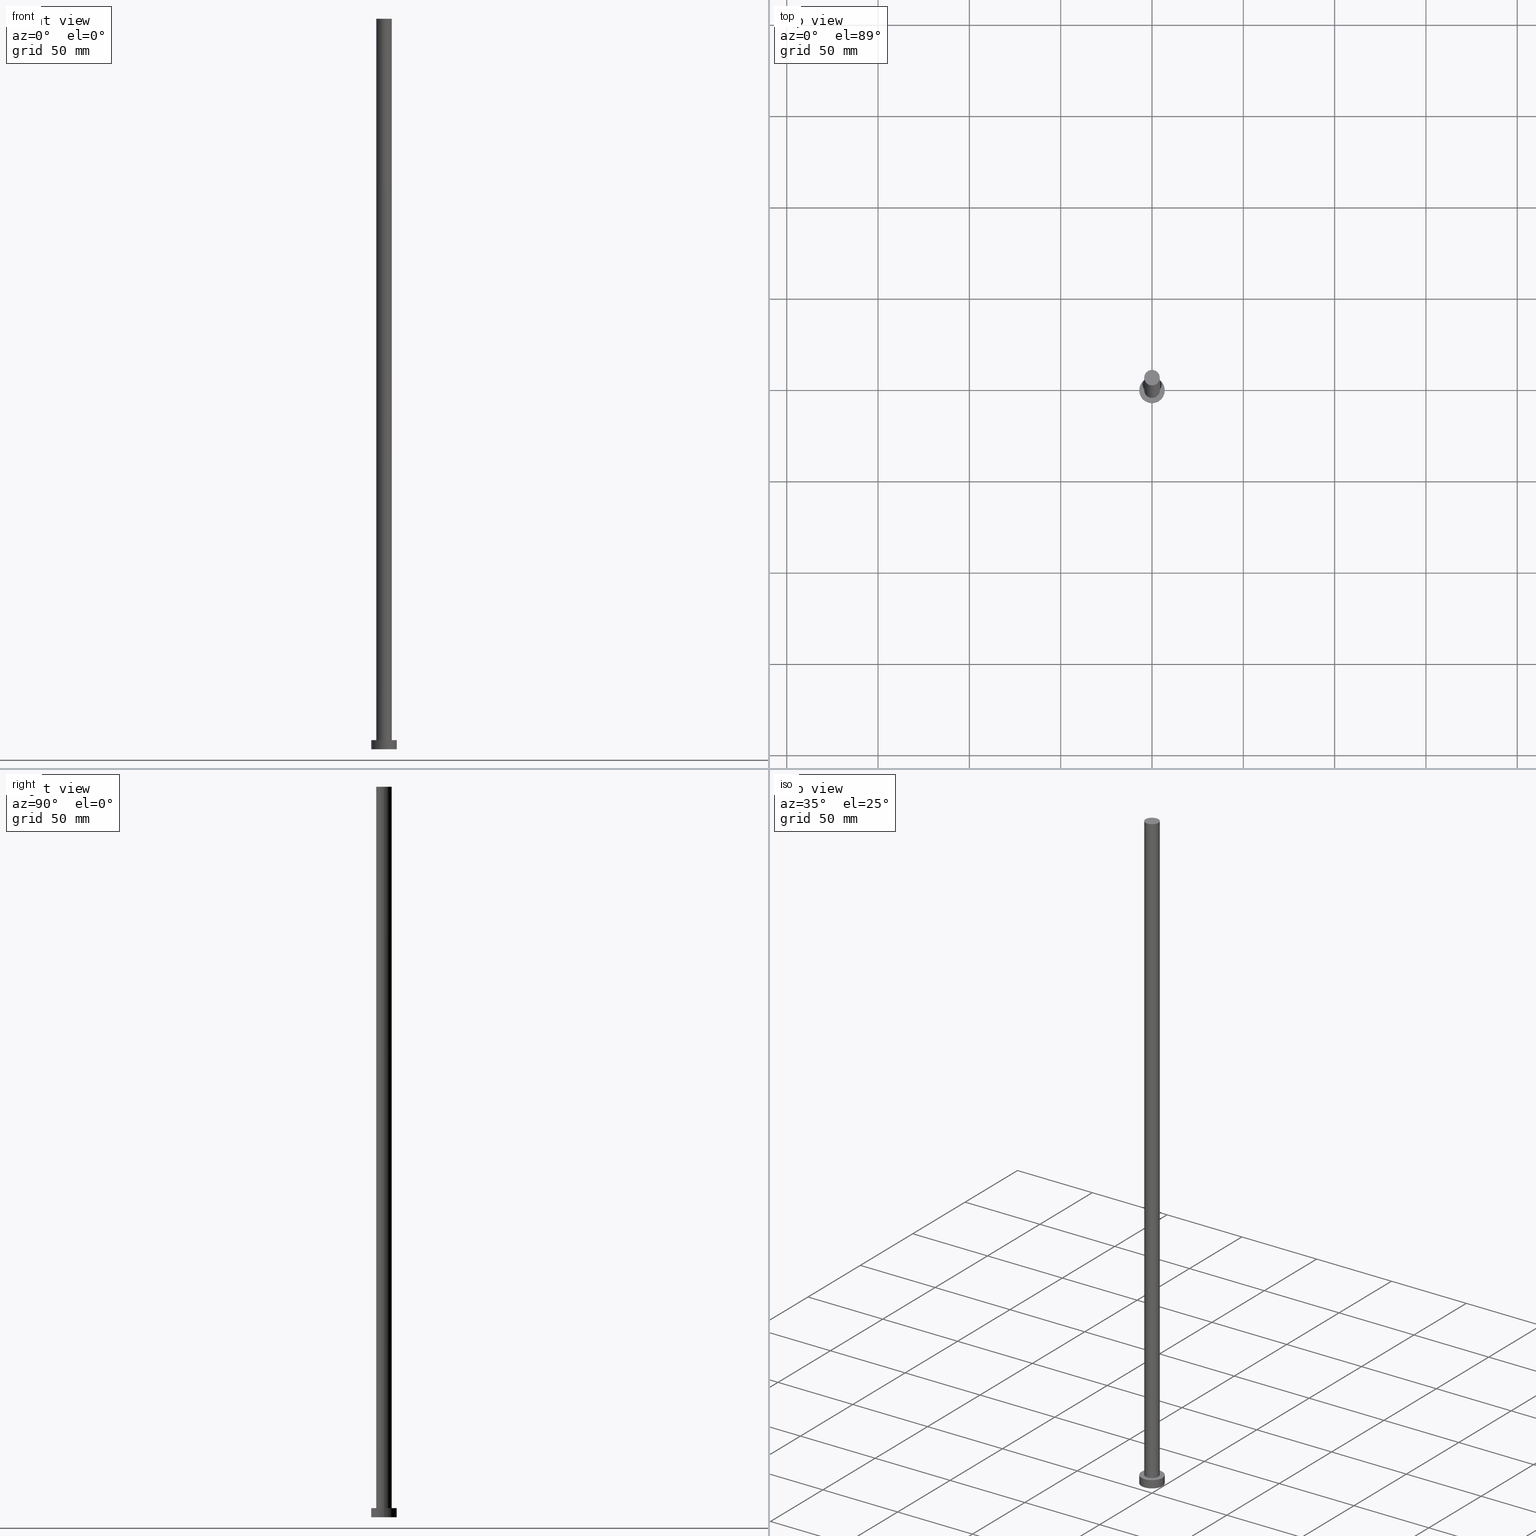
[diagram: canonical four-view strip — front | top / right | iso, engineering-drawing reading convention]
A machine part, canonical four-view strip (front | top / right | iso — engineering-drawing reading convention). The complete STEP part file that produces these views, byte-faithful:
ISO-10303-21;
HEADER;
FILE_DESCRIPTION (( 'STEP AP203' ),
    '1' );
FILE_NAME ('5774.STEP',
    '2023-02-13T13:52:42',
    ( '' ),
    ( '' ),
    'SwSTEP 2.0',
    'SolidWorks 2019',
    '' );
FILE_SCHEMA (( 'CONFIG_CONTROL_DESIGN' ));
ENDSEC;

DATA;
#1 = DIRECTION ( 'NONE',  ( 0.000000000000000000, 0.000000000000000000, 1.000000000000000000 ) ) ;
#2 = DIRECTION ( 'NONE',  ( -0.000000000000000000, -0.000000000000000000, -1.000000000000000000 ) ) ;
#3 = CARTESIAN_POINT ( 'NONE',  ( 0.000000000000000000, 0.000000000000000000, 5.000000000000000000 ) ) ;
#4 = DIRECTION ( 'NONE',  ( 0.000000000000000000, 0.000000000000000000, 1.000000000000000000 ) ) ;
#5 = CARTESIAN_POINT ( 'NONE',  ( 0.000000000000000000, 0.000000000000000000, 0.000000000000000000 ) ) ;
#6 = CARTESIAN_POINT ( 'NONE',  ( 4.250000000000000000, 5.204748896376249713E-16, 5.000000000000000000 ) ) ;
#7 = CIRCLE ( 'NONE', #88, 7.000000000000000000 ) ;
#8 = PERSON_AND_ORGANIZATION ( #19, #34 ) ;
#9 = ORIENTED_EDGE ( 'NONE', *, *, #170, .T. ) ;
#10 = AXIS2_PLACEMENT_3D ( 'NONE', #86, #124, #99 ) ;
#11 = EDGE_CURVE ( 'NONE', #206, #139, #152, .T. ) ;
#12 = PRODUCT_DEFINITION_SHAPE ( 'NONE', 'NONE',  #74 ) ;
#13 = APPROVAL ( #18, 'NEUR�EN�' ) ;
#14 = DIRECTION ( 'NONE',  ( 0.000000000000000000, 0.000000000000000000, 1.000000000000000000 ) ) ;
#15 = COORDINATED_UNIVERSAL_TIME_OFFSET ( 1, 0, .AHEAD. ) ;
#16 = CC_DESIGN_APPROVAL ( #229, ( #74 ) ) ;
#17 = DIRECTION ( 'NONE',  ( 0.000000000000000000, 0.000000000000000000, 1.000000000000000000 ) ) ;
#18 = APPROVAL_STATUS ( 'not_yet_approved' ) ;
#19 = PERSON ( 'NEUR�EN�', 'NEUR�EN�', 'NEUR�EN�', ('NEUR�EN�'), ('NEUR�EN�'), ('NEUR�EN�') ) ;
#20 = ORIENTED_EDGE ( 'NONE', *, *, #11, .T. ) ;
#21 = FACE_OUTER_BOUND ( 'NONE', #85, .T. ) ;
#22 = ORIENTED_EDGE ( 'NONE', *, *, #35, .F. ) ;
#23 = PRODUCT ( '5774', '5774', '', ( #146 ) ) ;
#24 = CARTESIAN_POINT ( 'NONE',  ( -4.250000000000000000, 0.000000000000000000, 400.0000000000000000 ) ) ;
#25 = EDGE_CURVE ( 'NONE', #160, #137, #212, .T. ) ;
#26 = LINE ( 'NONE', #184, #167 ) ;
#27 = DIRECTION ( 'NONE',  ( 0.000000000000000000, 0.000000000000000000, 1.000000000000000000 ) ) ;
#28 = APPROVAL_PERSON_ORGANIZATION ( #157, #108, #203 ) ;
#29 = ADVANCED_FACE ( 'NONE', ( #21 ), #251, .T. ) ;
#30 = APPLICATION_CONTEXT ( 'configuration controlled 3d designs of mechanical parts and assemblies' ) ;
#31 = UNCERTAINTY_MEASURE_WITH_UNIT (LENGTH_MEASURE( 1.000000000000000082E-05 ), #181, 'distance_accuracy_value', 'NONE');
#32 = VECTOR ( 'NONE', #221, 1000.000000000000000 ) ;
#33 = DATE_TIME_ROLE ( 'classification_date' ) ;
#34 = ORGANIZATION ( 'NEUR�EN�', 'NEUR�EN�', '' ) ;
#35 = EDGE_CURVE ( 'NONE', #137, #160, #224, .T. ) ;
#36 = APPROVAL_STATUS ( 'not_yet_approved' ) ;
#37 = AXIS2_PLACEMENT_3D ( 'NONE', #82, #216, #211 ) ;
#38 = EDGE_LOOP ( 'NONE', ( #44, #9 ) ) ;
#39 = ORIENTED_EDGE ( 'NONE', *, *, #223, .T. ) ;
#40 = DIRECTION ( 'NONE',  ( 1.000000000000000000, 0.000000000000000000, 0.000000000000000000 ) ) ;
#41 = LOCAL_TIME ( 14, 52, 42.00000000000000000, #112 ) ;
#42 = FACE_OUTER_BOUND ( 'NONE', #215, .T. ) ;
#43 = CC_DESIGN_PERSON_AND_ORGANIZATION_ASSIGNMENT ( #8, #173, ( #163 ) ) ;
#44 = ORIENTED_EDGE ( 'NONE', *, *, #90, .T. ) ;
#45 = CYLINDRICAL_SURFACE ( 'NONE', #37, 7.000000000000000000 ) ;
#46 = SECURITY_CLASSIFICATION ( '', '', #110 ) ;
#47 = ORIENTED_EDGE ( 'NONE', *, *, #234, .T. ) ;
#48 = CARTESIAN_POINT ( 'NONE',  ( 7.000000000000000000, 8.572527594031473190E-16, 0.000000000000000000 ) ) ;
#49 = APPLICATION_PROTOCOL_DEFINITION ( 'international standard', 'config_control_design', 1994, #30 ) ;
#50 = DIRECTION ( 'NONE',  ( 1.000000000000000000, 0.000000000000000000, 0.000000000000000000 ) ) ;
#51 = DATE_TIME_ROLE ( 'creation_date' ) ;
#52 = ORIENTED_EDGE ( 'NONE', *, *, #95, .T. ) ;
#53 = AXIS2_PLACEMENT_3D ( 'NONE', #162, #145, #201 ) ;
#54 = CC_DESIGN_DATE_AND_TIME_ASSIGNMENT ( #193, #51, ( #74 ) ) ;
#55 = APPROVAL_STATUS ( 'not_yet_approved' ) ;
#56 = ORIENTED_EDGE ( 'NONE', *, *, #161, .T. ) ;
#57 = PERSON_AND_ORGANIZATION_ROLE ( 'creator' ) ;
#58 = AXIS2_PLACEMENT_3D ( 'NONE', #97, #172, #195 ) ;
#59 = ORIENTED_EDGE ( 'NONE', *, *, #234, .F. ) ;
#60 = CARTESIAN_POINT ( 'NONE',  ( 0.000000000000000000, 0.000000000000000000, 5.000000000000000000 ) ) ;
#61 = CALENDAR_DATE ( 2023, 13, 2 ) ;
#62 = DIRECTION ( 'NONE',  ( 1.000000000000000000, 0.000000000000000000, 0.000000000000000000 ) ) ;
#63 =( GEOMETRIC_REPRESENTATION_CONTEXT ( 3 ) GLOBAL_UNCERTAINTY_ASSIGNED_CONTEXT ( ( #31 ) ) GLOBAL_UNIT_ASSIGNED_CONTEXT ( ( #181, #199, #239 ) ) REPRESENTATION_CONTEXT ( 'NONE', 'WORKASPACE' ) );
#64 = ORIENTED_EDGE ( 'NONE', *, *, #25, .F. ) ;
#65 = ADVANCED_FACE ( 'NONE', ( #255 ), #45, .T. ) ;
#66 = CARTESIAN_POINT ( 'NONE',  ( 0.000000000000000000, 0.000000000000000000, 5.000000000000000000 ) ) ;
#67 = APPLICATION_CONTEXT ( 'configuration controlled 3d designs of mechanical parts and assemblies' ) ;
#68 = CARTESIAN_POINT ( 'NONE',  ( -4.250000000000000000, 0.000000000000000000, 400.0000000000000000 ) ) ;
#69 = APPLICATION_PROTOCOL_DEFINITION ( 'international standard', 'config_control_design', 1994, #67 ) ;
#70 = PERSON_AND_ORGANIZATION_ROLE ( 'design_owner' ) ;
#71 = CIRCLE ( 'NONE', #102, 4.250000000000000000 ) ;
#72 = PLANE ( 'NONE',  #144 ) ;
#73 = CALENDAR_DATE ( 2023, 13, 2 ) ;
#74 = PRODUCT_DEFINITION ( 'NEZN�M�', '', #163, #186 ) ;
#75 = EDGE_LOOP ( 'NONE', ( #119, #245 ) ) ;
#76 = AXIS2_PLACEMENT_3D ( 'NONE', #104, #1, #218 ) ;
#77 = LOCAL_TIME ( 14, 52, 42.00000000000000000, #232 ) ;
#78 = DATE_AND_TIME ( #187, #41 ) ;
#79 = VERTEX_POINT ( 'NONE', #156 ) ;
#80 = CARTESIAN_POINT ( 'NONE',  ( 7.000000000000000000, 8.572527594031473190E-16, 5.000000000000000000 ) ) ;
#81 = PERSON_AND_ORGANIZATION ( #19, #34 ) ;
#82 = CARTESIAN_POINT ( 'NONE',  ( 0.000000000000000000, 0.000000000000000000, 5.000000000000000000 ) ) ;
#83 = APPROVAL_ROLE ( '' ) ;
#84 = DIRECTION ( 'NONE',  ( 1.000000000000000000, 0.000000000000000000, -0.000000000000000000 ) ) ;
#85 = EDGE_LOOP ( 'NONE', ( #22, #196, #179, #192 ) ) ;
#86 = CARTESIAN_POINT ( 'NONE',  ( 0.000000000000000000, 0.000000000000000000, 5.000000000000000000 ) ) ;
#87 = CARTESIAN_POINT ( 'NONE',  ( 0.000000000000000000, 0.000000000000000000, 400.0000000000000000 ) ) ;
#88 = AXIS2_PLACEMENT_3D ( 'NONE', #5, #200, #131 ) ;
#89 = ADVANCED_BREP_SHAPE_REPRESENTATION ( '5774', ( #238, #153 ), #63 ) ;
#90 = EDGE_CURVE ( 'NONE', #154, #235, #254, .T. ) ;
#91 = DIRECTION ( 'NONE',  ( 1.000000000000000000, 0.000000000000000000, 0.000000000000000000 ) ) ;
#92 = VECTOR ( 'NONE', #158, 1000.000000000000000 ) ;
#93 = CC_DESIGN_APPROVAL ( #108, ( #163 ) ) ;
#94 = ORIENTED_EDGE ( 'NONE', *, *, #114, .T. ) ;
#95 = EDGE_CURVE ( 'NONE', #191, #79, #71, .T. ) ;
#96 = EDGE_LOOP ( 'NONE', ( #116, #39, #52, #174 ) ) ;
#97 = CARTESIAN_POINT ( 'NONE',  ( 0.000000000000000000, 0.000000000000000000, 5.000000000000000000 ) ) ;
#98 = ADVANCED_FACE ( 'NONE', ( #143 ), #253, .F. ) ;
#99 = DIRECTION ( 'NONE',  ( 1.000000000000000000, 0.000000000000000000, 0.000000000000000000 ) ) ;
#100 = COORDINATED_UNIVERSAL_TIME_OFFSET ( 1, 0, .AHEAD. ) ;
#101 = DIRECTION ( 'NONE',  ( -1.000000000000000000, 0.000000000000000000, 0.000000000000000000 ) ) ;
#102 = AXIS2_PLACEMENT_3D ( 'NONE', #66, #17, #40 ) ;
#103 = DIRECTION ( 'NONE',  ( 0.000000000000000000, 0.000000000000000000, 1.000000000000000000 ) ) ;
#104 = CARTESIAN_POINT ( 'NONE',  ( 0.000000000000000000, 0.000000000000000000, 0.000000000000000000 ) ) ;
#105 = CYLINDRICAL_SURFACE ( 'NONE', #107, 4.250000000000000000 ) ;
#106 = DIRECTION ( 'NONE',  ( -0.000000000000000000, -0.000000000000000000, -1.000000000000000000 ) ) ;
#107 = AXIS2_PLACEMENT_3D ( 'NONE', #109, #2, #147 ) ;
#108 = APPROVAL ( #36, 'NEUR�EN�' ) ;
#109 = CARTESIAN_POINT ( 'NONE',  ( 0.000000000000000000, 0.000000000000000000, 400.0000000000000000 ) ) ;
#110 = SECURITY_CLASSIFICATION_LEVEL ( 'unclassified' ) ;
#111 = EDGE_LOOP ( 'NONE', ( #159, #197, #56, #47 ) ) ;
#112 = COORDINATED_UNIVERSAL_TIME_OFFSET ( 1, 0, .AHEAD. ) ;
#113 = AXIS2_PLACEMENT_3D ( 'NONE', #125, #236, #230 ) ;
#114 = EDGE_CURVE ( 'NONE', #160, #206, #233, .T. ) ;
#115 = ORIENTED_EDGE ( 'NONE', *, *, #135, .F. ) ;
#116 = ORIENTED_EDGE ( 'NONE', *, *, #170, .F. ) ;
#117 = ADVANCED_FACE ( 'NONE', ( #123, #42 ), #122, .T. ) ;
#118 = APPROVAL_DATE_TIME ( #205, #229 ) ;
#119 = ORIENTED_EDGE ( 'NONE', *, *, #11, .F. ) ;
#120 = CC_DESIGN_APPROVAL ( #13, ( #46 ) ) ;
#121 = PERSON_AND_ORGANIZATION_ROLE ( 'classification_officer' ) ;
#122 = PLANE ( 'NONE',  #58 ) ;
#123 = FACE_BOUND ( 'NONE', #209, .T. ) ;
#124 = DIRECTION ( 'NONE',  ( 0.000000000000000000, 0.000000000000000000, 1.000000000000000000 ) ) ;
#125 = CARTESIAN_POINT ( 'NONE',  ( 0.000000000000000000, 0.000000000000000000, 5.000000000000000000 ) ) ;
#126 = LINE ( 'NONE', #24, #32 ) ;
#127 = CC_DESIGN_PERSON_AND_ORGANIZATION_ASSIGNMENT ( #252, #189, ( #163 ) ) ;
#128 = DIRECTION ( 'NONE',  ( 1.000000000000000000, 0.000000000000000000, 0.000000000000000000 ) ) ;
#129 = LOCAL_TIME ( 14, 52, 42.00000000000000000, #100 ) ;
#130 = DIRECTION ( 'NONE',  ( 1.000000000000000000, 0.000000000000000000, -0.000000000000000000 ) ) ;
#131 = DIRECTION ( 'NONE',  ( 1.000000000000000000, 0.000000000000000000, 0.000000000000000000 ) ) ;
#132 = COORDINATED_UNIVERSAL_TIME_OFFSET ( 1, 0, .AHEAD. ) ;
#133 = AXIS2_PLACEMENT_3D ( 'NONE', #3, #202, #91 ) ;
#134 = PERSON_AND_ORGANIZATION ( #19, #34 ) ;
#135 = EDGE_CURVE ( 'NONE', #137, #139, #249, .T. ) ;
#136 = APPROVAL_PERSON_ORGANIZATION ( #134, #229, #83 ) ;
#137 = VERTEX_POINT ( 'NONE', #225 ) ;
#138 = DATE_AND_TIME ( #150, #129 ) ;
#139 = VERTEX_POINT ( 'NONE', #48 ) ;
#140 = CARTESIAN_POINT ( 'NONE',  ( -7.000000000000000000, 0.000000000000000000, 5.000000000000000000 ) ) ;
#141 = DIRECTION ( 'NONE',  ( -0.000000000000000000, -0.000000000000000000, -1.000000000000000000 ) ) ;
#142 = ORIENTED_EDGE ( 'NONE', *, *, #25, .T. ) ;
#143 = FACE_OUTER_BOUND ( 'NONE', #75, .T. ) ;
#144 = AXIS2_PLACEMENT_3D ( 'NONE', #241, #27, #130 ) ;
#145 = DIRECTION ( 'NONE',  ( -0.000000000000000000, -0.000000000000000000, -1.000000000000000000 ) ) ;
#146 = MECHANICAL_CONTEXT ( 'NONE', #67, 'mechanical' ) ;
#147 = DIRECTION ( 'NONE',  ( -1.000000000000000000, 0.000000000000000000, 0.000000000000000000 ) ) ;
#148 = CC_DESIGN_DATE_AND_TIME_ASSIGNMENT ( #168, #33, ( #46 ) ) ;
#149 = CARTESIAN_POINT ( 'NONE',  ( -7.000000000000000000, 0.000000000000000000, 0.000000000000000000 ) ) ;
#150 = CALENDAR_DATE ( 2023, 13, 2 ) ;
#151 = APPROVAL_DATE_TIME ( #78, #108 ) ;
#152 = CIRCLE ( 'NONE', #76, 7.000000000000000000 ) ;
#153 = AXIS2_PLACEMENT_3D ( 'NONE', #222, #243, #50 ) ;
#154 = VERTEX_POINT ( 'NONE', #68 ) ;
#155 = PERSON_AND_ORGANIZATION ( #19, #34 ) ;
#156 = CARTESIAN_POINT ( 'NONE',  ( -4.250000000000000000, 0.000000000000000000, 5.000000000000000000 ) ) ;
#157 = PERSON_AND_ORGANIZATION ( #19, #34 ) ;
#158 = DIRECTION ( 'NONE',  ( -0.000000000000000000, -0.000000000000000000, -1.000000000000000000 ) ) ;
#159 = ORIENTED_EDGE ( 'NONE', *, *, #223, .F. ) ;
#160 = VERTEX_POINT ( 'NONE', #164 ) ;
#161 = EDGE_CURVE ( 'NONE', #154, #79, #126, .T. ) ;
#162 = CARTESIAN_POINT ( 'NONE',  ( 0.000000000000000000, 0.000000000000000000, 400.0000000000000000 ) ) ;
#163 = PRODUCT_DEFINITION_FORMATION_WITH_SPECIFIED_SOURCE ( 'LIBOVOLN�', '', #23, .NOT_KNOWN. ) ;
#164 = CARTESIAN_POINT ( 'NONE',  ( -7.000000000000000000, 0.000000000000000000, 5.000000000000000000 ) ) ;
#165 = PERSON_AND_ORGANIZATION ( #19, #34 ) ;
#166 = FACE_OUTER_BOUND ( 'NONE', #38, .T. ) ;
#167 = VECTOR ( 'NONE', #106, 1000.000000000000000 ) ;
#168 = DATE_AND_TIME ( #250, #214 ) ;
#169 = ORIENTED_EDGE ( 'NONE', *, *, #35, .T. ) ;
#170 = EDGE_CURVE ( 'NONE', #235, #154, #248, .T. ) ;
#171 = APPROVAL_PERSON_ORGANIZATION ( #81, #13, #244 ) ;
#172 = DIRECTION ( 'NONE',  ( 0.000000000000000000, 0.000000000000000000, 1.000000000000000000 ) ) ;
#173 = PERSON_AND_ORGANIZATION_ROLE ( 'creator' ) ;
#174 = ORIENTED_EDGE ( 'NONE', *, *, #161, .F. ) ;
#175 = ADVANCED_FACE ( 'NONE', ( #166 ), #72, .T. ) ;
#176 = CARTESIAN_POINT ( 'NONE',  ( 0.000000000000000000, 0.000000000000000000, 400.0000000000000000 ) ) ;
#177 = AXIS2_PLACEMENT_3D ( 'NONE', #176, #103, #62 ) ;
#178 = DIRECTION ( 'NONE',  ( -0.000000000000000000, -0.000000000000000000, -1.000000000000000000 ) ) ;
#179 = ORIENTED_EDGE ( 'NONE', *, *, #217, .T. ) ;
#180 = CC_DESIGN_PERSON_AND_ORGANIZATION_ASSIGNMENT ( #246, #57, ( #74 ) ) ;
#181 =( LENGTH_UNIT ( ) NAMED_UNIT ( * ) SI_UNIT ( .MILLI., .METRE. ) );
#182 = CLOSED_SHELL ( 'NONE', ( #213, #29, #65, #117, #98, #207, #175 ) ) ;
#183 = FACE_OUTER_BOUND ( 'NONE', #111, .T. ) ;
#184 = CARTESIAN_POINT ( 'NONE',  ( 4.250000000000000000, 5.204748896376249713E-16, 400.0000000000000000 ) ) ;
#185 = CYLINDRICAL_SURFACE ( 'NONE', #53, 4.250000000000000000 ) ;
#186 = DESIGN_CONTEXT ( 'detailed design', #30, 'design' ) ;
#187 = CALENDAR_DATE ( 2023, 13, 2 ) ;
#188 = CC_DESIGN_PERSON_AND_ORGANIZATION_ASSIGNMENT ( #165, #70, ( #23 ) ) ;
#189 = PERSON_AND_ORGANIZATION_ROLE ( 'design_supplier' ) ;
#190 = PRODUCT_RELATED_PRODUCT_CATEGORY ( 'detail', '', ( #23 ) ) ;
#191 = VERTEX_POINT ( 'NONE', #6 ) ;
#192 = ORIENTED_EDGE ( 'NONE', *, *, #114, .F. ) ;
#193 = DATE_AND_TIME ( #73, #77 ) ;
#194 = CC_DESIGN_PERSON_AND_ORGANIZATION_ASSIGNMENT ( #155, #121, ( #46 ) ) ;
#195 = DIRECTION ( 'NONE',  ( 1.000000000000000000, 0.000000000000000000, -0.000000000000000000 ) ) ;
#196 = ORIENTED_EDGE ( 'NONE', *, *, #135, .T. ) ;
#197 = ORIENTED_EDGE ( 'NONE', *, *, #90, .F. ) ;
#198 = CIRCLE ( 'NONE', #133, 4.250000000000000000 ) ;
#199 =( NAMED_UNIT ( * ) PLANE_ANGLE_UNIT ( ) SI_UNIT ( $, .RADIAN. ) );
#200 = DIRECTION ( 'NONE',  ( 0.000000000000000000, 0.000000000000000000, 1.000000000000000000 ) ) ;
#201 = DIRECTION ( 'NONE',  ( -1.000000000000000000, 0.000000000000000000, 0.000000000000000000 ) ) ;
#202 = DIRECTION ( 'NONE',  ( 0.000000000000000000, 0.000000000000000000, 1.000000000000000000 ) ) ;
#203 = APPROVAL_ROLE ( '' ) ;
#204 = AXIS2_PLACEMENT_3D ( 'NONE', #87, #4, #128 ) ;
#205 = DATE_AND_TIME ( #61, #227 ) ;
#206 = VERTEX_POINT ( 'NONE', #149 ) ;
#207 = ADVANCED_FACE ( 'NONE', ( #183 ), #185, .T. ) ;
#208 = AXIS2_PLACEMENT_3D ( 'NONE', #220, #14, #84 ) ;
#209 = EDGE_LOOP ( 'NONE', ( #59, #228 ) ) ;
#210 = APPROVAL_DATE_TIME ( #138, #13 ) ;
#211 = DIRECTION ( 'NONE',  ( -1.000000000000000000, 0.000000000000000000, 0.000000000000000000 ) ) ;
#212 = CIRCLE ( 'NONE', #10, 7.000000000000000000 ) ;
#213 = ADVANCED_FACE ( 'NONE', ( #237 ), #105, .T. ) ;
#214 = LOCAL_TIME ( 14, 52, 42.00000000000000000, #132 ) ;
#215 = EDGE_LOOP ( 'NONE', ( #142, #169 ) ) ;
#216 = DIRECTION ( 'NONE',  ( -0.000000000000000000, -0.000000000000000000, -1.000000000000000000 ) ) ;
#217 = EDGE_CURVE ( 'NONE', #139, #206, #7, .T. ) ;
#218 = DIRECTION ( 'NONE',  ( 1.000000000000000000, 0.000000000000000000, 0.000000000000000000 ) ) ;
#219 = AXIS2_PLACEMENT_3D ( 'NONE', #60, #141, #101 ) ;
#220 = CARTESIAN_POINT ( 'NONE',  ( 0.000000000000000000, 0.000000000000000000, 0.000000000000000000 ) ) ;
#221 = DIRECTION ( 'NONE',  ( -0.000000000000000000, -0.000000000000000000, -1.000000000000000000 ) ) ;
#222 = CARTESIAN_POINT ( 'NONE',  ( 0.000000000000000000, 0.000000000000000000, 0.000000000000000000 ) ) ;
#223 = EDGE_CURVE ( 'NONE', #235, #191, #26, .T. ) ;
#224 = CIRCLE ( 'NONE', #113, 7.000000000000000000 ) ;
#225 = CARTESIAN_POINT ( 'NONE',  ( 7.000000000000000000, 8.572527594031473190E-16, 5.000000000000000000 ) ) ;
#226 = SHAPE_DEFINITION_REPRESENTATION ( #12, #89 ) ;
#227 = LOCAL_TIME ( 14, 52, 42.00000000000000000, #15 ) ;
#228 = ORIENTED_EDGE ( 'NONE', *, *, #95, .F. ) ;
#229 = APPROVAL ( #55, 'NEUR�EN�' ) ;
#230 = DIRECTION ( 'NONE',  ( 1.000000000000000000, 0.000000000000000000, 0.000000000000000000 ) ) ;
#231 = EDGE_LOOP ( 'NONE', ( #115, #64, #94, #20 ) ) ;
#232 = COORDINATED_UNIVERSAL_TIME_OFFSET ( 1, 0, .AHEAD. ) ;
#233 = LINE ( 'NONE', #140, #247 ) ;
#234 = EDGE_CURVE ( 'NONE', #79, #191, #198, .T. ) ;
#235 = VERTEX_POINT ( 'NONE', #240 ) ;
#236 = DIRECTION ( 'NONE',  ( 0.000000000000000000, 0.000000000000000000, 1.000000000000000000 ) ) ;
#237 = FACE_OUTER_BOUND ( 'NONE', #96, .T. ) ;
#238 = MANIFOLD_SOLID_BREP ( 'P�idat vysunut�m3', #182 ) ;
#239 =( NAMED_UNIT ( * ) SI_UNIT ( $, .STERADIAN. ) SOLID_ANGLE_UNIT ( ) );
#240 = CARTESIAN_POINT ( 'NONE',  ( 4.250000000000000000, 5.204748896376249713E-16, 400.0000000000000000 ) ) ;
#241 = CARTESIAN_POINT ( 'NONE',  ( 0.000000000000000000, 0.000000000000000000, 400.0000000000000000 ) ) ;
#242 = CC_DESIGN_SECURITY_CLASSIFICATION ( #46, ( #163 ) ) ;
#243 = DIRECTION ( 'NONE',  ( 0.000000000000000000, 0.000000000000000000, 1.000000000000000000 ) ) ;
#244 = APPROVAL_ROLE ( '' ) ;
#245 = ORIENTED_EDGE ( 'NONE', *, *, #217, .F. ) ;
#246 = PERSON_AND_ORGANIZATION ( #19, #34 ) ;
#247 = VECTOR ( 'NONE', #178, 1000.000000000000000 ) ;
#248 = CIRCLE ( 'NONE', #204, 4.250000000000000000 ) ;
#249 = LINE ( 'NONE', #80, #92 ) ;
#250 = CALENDAR_DATE ( 2023, 13, 2 ) ;
#251 = CYLINDRICAL_SURFACE ( 'NONE', #219, 7.000000000000000000 ) ;
#252 = PERSON_AND_ORGANIZATION ( #19, #34 ) ;
#253 = PLANE ( 'NONE',  #208 ) ;
#254 = CIRCLE ( 'NONE', #177, 4.250000000000000000 ) ;
#255 = FACE_OUTER_BOUND ( 'NONE', #231, .T. ) ;
ENDSEC;
END-ISO-10303-21;
